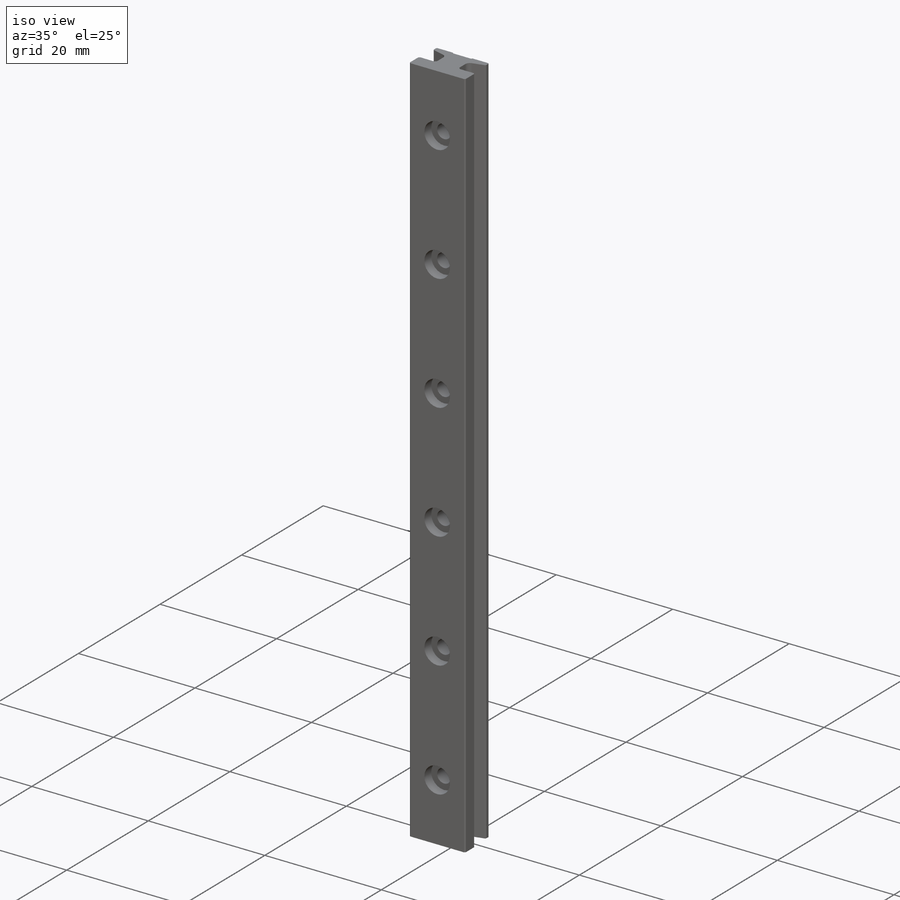
[diagram: iso view]
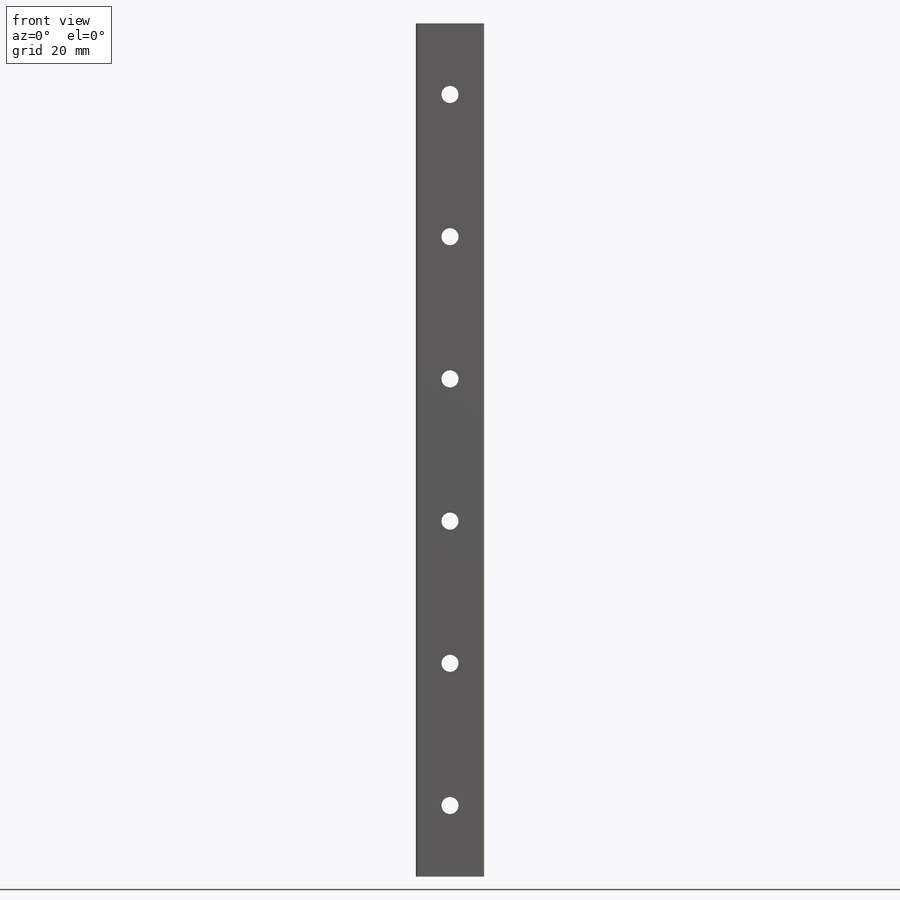
[diagram: front view]
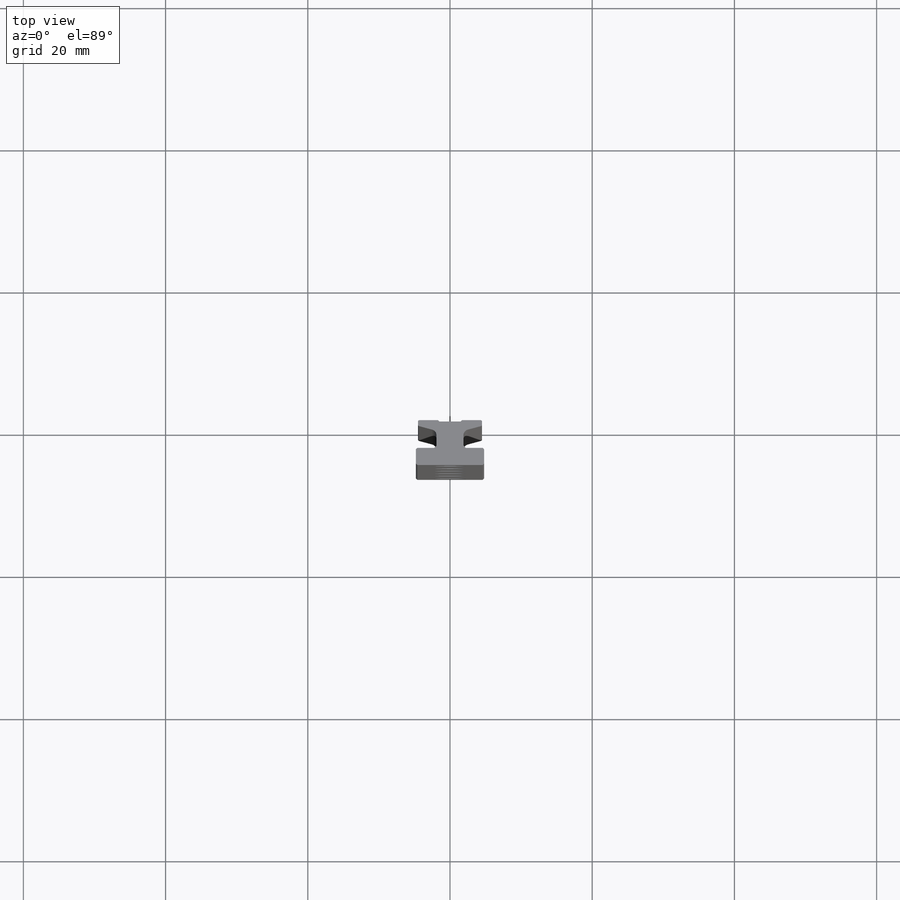
[diagram: top view]
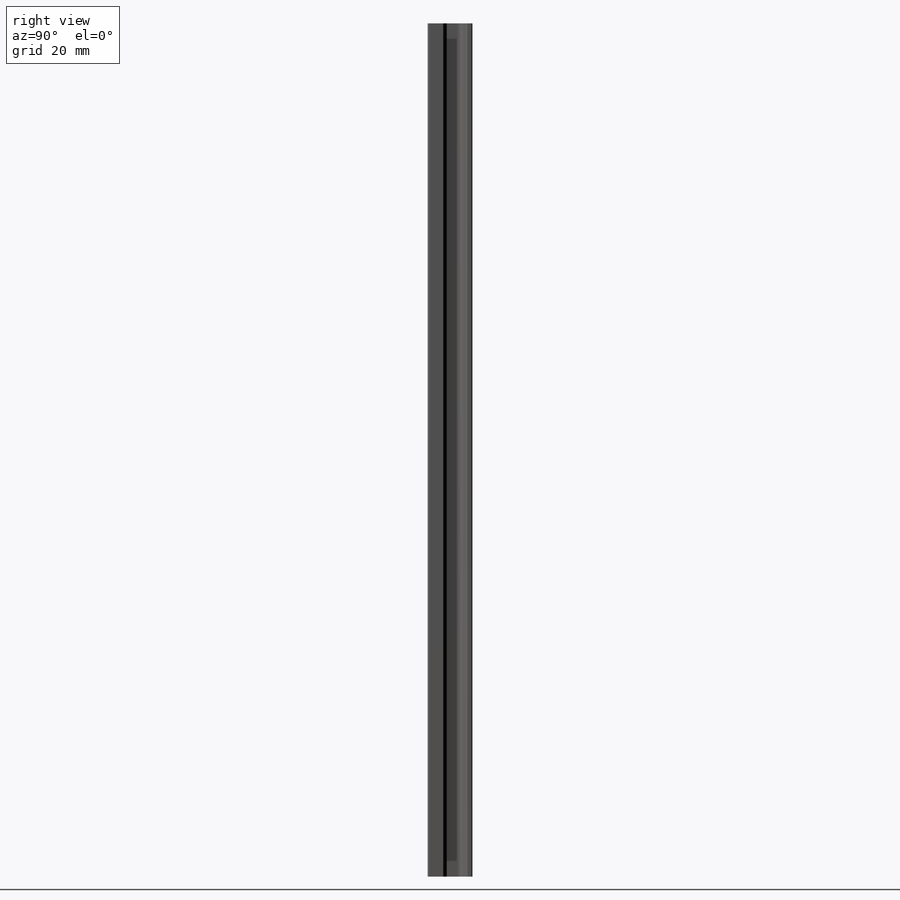
[diagram: right view]
SOLIDWORKS PART (.sldprt)
format: sldprt  version: not decoded by parser v0  size: 332,800 bytes
history: native  units: mm
features: sketch x18, hole x6, chamfer x6, fillet x6, extrude x3, cut_extrude x3, material x1, plane x1 (+16 scaffold rows collapsed)
feature tree (60):
  scaffold x16  (default folders/planes/origin — collapsed)
  material  "Material <not specified>"
  plane  "Plane1"  Offset=6.3mm
  sketch  "Sketch1"
  extrude  "Boss-Extrude1"  Depth=6.3mm
  sketch  "Sketch2"
  cut_extrude  "Cut-Extrude1"  Depth=120mm
  sketch  "Sketch3"
  extrude  "Boss-Extrude2"  Depth=2.9mm
  sketch  "Sketch4"
  cut_extrude  "Cut-Extrude2"  Depth=120mm
  sketch  "Sketch5"
  extrude  "Boss-Extrude3"  Depth=2.9mm
  sketch  "Sketch6"
  cut_extrude  "Cut-Extrude3"  Depth=120mm
  hole  "Hole1"  Diameter=2.4mm Depth=6.3mm
  sketch  "Sketch8"
  sketch  "Sketch7"  dims[Diameter=2.4mm Depth=6.3mm C-Bore Diameter=4.4mm C-Bore Depth=1.7mm]
  hole  "Hole2"  Diameter=2.4mm Depth=6.3mm
  sketch  "Sketch10"
  sketch  "Sketch9"  dims[Diameter=2.4mm Depth=6.3mm C-Bore Diameter=4.4mm C-Bore Depth=1.7mm]
  hole  "Hole3"  Diameter=2.4mm Depth=6.3mm
  sketch  "Sketch12"
  sketch  "Sketch11"  dims[Diameter=2.4mm Depth=6.3mm C-Bore Diameter=4.4mm C-Bore Depth=1.7mm]
  hole  "Hole4"  Diameter=2.4mm Depth=6.3mm
  sketch  "Sketch14"
  sketch  "Sketch13"  dims[Diameter=2.4mm Depth=6.3mm C-Bore Diameter=4.4mm C-Bore Depth=1.7mm]
  hole  "Hole5"  Diameter=2.4mm Depth=6.3mm
  sketch  "Sketch16"
  sketch  "Sketch15"  dims[Diameter=2.4mm Depth=6.3mm C-Bore Diameter=4.4mm C-Bore Depth=1.7mm]
  hole  "Hole6"  Diameter=2.4mm Depth=6.3mm
  sketch  "Sketch18"
  sketch  "Sketch17"  dims[Diameter=2.4mm Depth=6.3mm C-Bore Diameter=4.4mm C-Bore Depth=1.7mm]
  chamfer  "Chamfer1"  Distance=0.2mm Angle=45deg
  chamfer  "Chamfer2"  Distance=0.3mm Angle=45deg
  chamfer  "Chamfer3"  Distance=0.2mm Angle=45deg
  chamfer  "Chamfer4"  Distance=0.3mm Angle=45deg
  chamfer  "Chamfer5"  Distance=0.2mm Angle=45deg
  chamfer  "Chamfer6"  Distance=0.2mm Angle=45deg
  fillet  "Fillet1"  Radius=0.2mm
  fillet  "Fillet2"  Radius=0.2mm
  fillet  "Fillet3"  Radius=0.2mm
  fillet  "Fillet4"  Radius=0.2mm
  fillet  "Fillet5"  Radius=0.8mm
  fillet  "Fillet6"  Radius=0.8mm
decode coverage: 30 of 42 modeling features carry decoded parameters
summary: Diameter pulled from absorbed wizard sketch
note: suppression state not decoded; provenance and decode notes live in map.json
